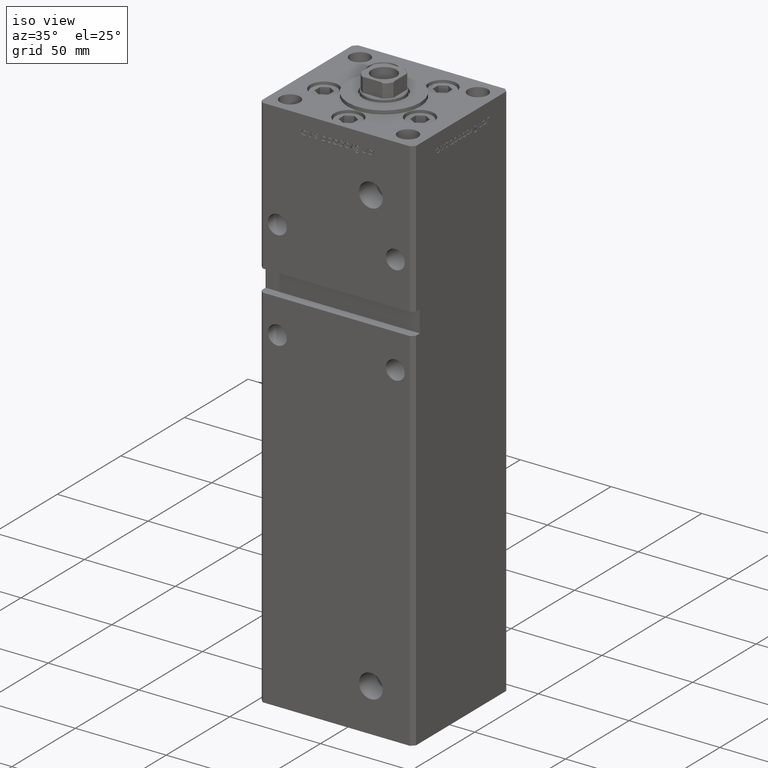
[diagram: clean part render]
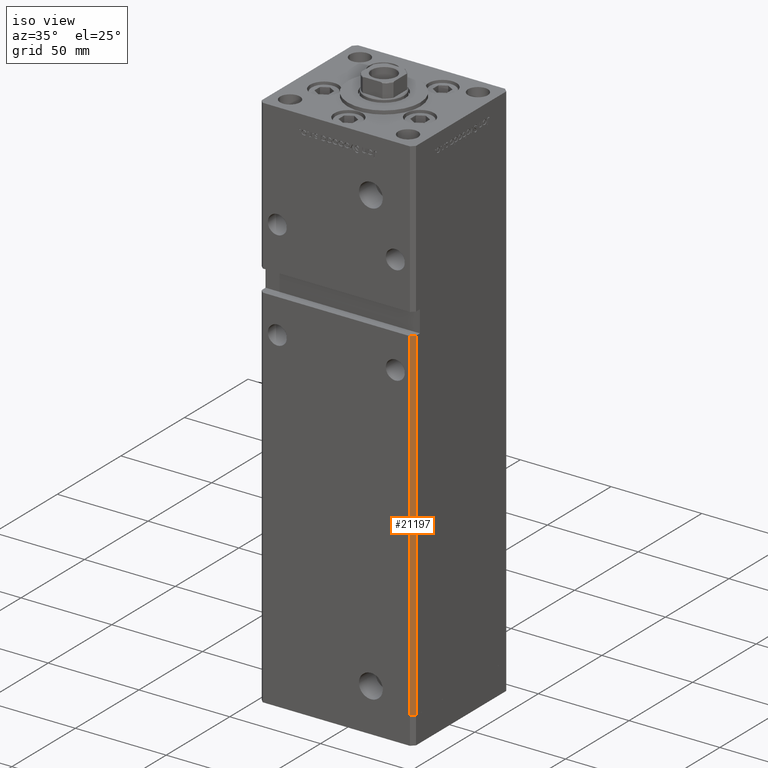
[diagram: same view with one face highlighted and labeled with its STEP entity id]
A machine part, iso view. The second image highlights one B-rep face of the part: STEP entity #21197.
In plain terms, the highlighted planar face has unit normal (0.7071, -0.7071, 0).
Its self-contained STEP definition (entity closure, byte-faithful):
#907 = DIRECTION ( 'NONE',  ( 0.7071067811865475727, -0.7071067811865475727, 0.000000000000000000 ) ) ;
#6633 = LINE ( 'NONE', #52622, #26767 ) ;
#8081 = ORIENTED_EDGE ( 'NONE', *, *, #50312, .T. ) ;
#9134 = VERTEX_POINT ( 'NONE', #39007 ) ;
#9194 = CARTESIAN_POINT ( 'NONE',  ( 42.49999999999998579, -35.50000000000000711, 0.000000000000000000 ) ) ;
#11236 = VECTOR ( 'NONE', #45776, 1000.000000000000000 ) ;
#12112 = LINE ( 'NONE', #20448, #51761 ) ;
#13001 = FACE_OUTER_BOUND ( 'NONE', #35631, .T. ) ;
#17243 = CARTESIAN_POINT ( 'NONE',  ( 42.49999999999998579, -35.50000000000000711, 268.5000000000000000 ) ) ;
#20448 = CARTESIAN_POINT ( 'NONE',  ( 40.49999999999998579, -37.50000000000000711, 268.5000000000000000 ) ) ;
#20450 = VERTEX_POINT ( 'NONE', #40330 ) ;
#21011 = LINE ( 'NONE', #17243, #11236 ) ;
#21197 = ADVANCED_FACE ( 'NONE', ( #13001 ), #29660, .T. ) ;
#25045 = ORIENTED_EDGE ( 'NONE', *, *, #26221, .F. ) ;
#25570 = DIRECTION ( 'NONE',  ( -0.7071067811865474617, -0.7071067811865474617, 0.000000000000000000 ) ) ;
#26221 = EDGE_CURVE ( 'NONE', #29706, #20450, #46047, .T. ) ;
#26767 = VECTOR ( 'NONE', #48587, 1000.000000000000114 ) ;
#27756 = EDGE_CURVE ( 'NONE', #36148, #29706, #21011, .T. ) ;
#29660 = PLANE ( 'NONE',  #35082 ) ;
#29706 = VERTEX_POINT ( 'NONE', #38703 ) ;
#30298 = CARTESIAN_POINT ( 'NONE',  ( 42.49999999999998579, -35.50000000000000711, 189.0000000000000000 ) ) ;
#30376 = ORIENTED_EDGE ( 'NONE', *, *, #50015, .F. ) ;
#35082 = AXIS2_PLACEMENT_3D ( 'NONE', #40991, #907, #45832 ) ;
#35631 = EDGE_LOOP ( 'NONE', ( #30376, #8081, #25045, #52849 ) ) ;
#36148 = VERTEX_POINT ( 'NONE', #30298 ) ;
#36862 = DIRECTION ( 'NONE',  ( -0.000000000000000000, -0.000000000000000000, -1.000000000000000000 ) ) ;
#38703 = CARTESIAN_POINT ( 'NONE',  ( 42.49999999999998579, -35.50000000000000711, 0.000000000000000000 ) ) ;
#39007 = CARTESIAN_POINT ( 'NONE',  ( 40.49999999999998579, -37.50000000000000711, 189.0000000000000000 ) ) ;
#39542 = VECTOR ( 'NONE', #25570, 1000.000000000000114 ) ;
#40330 = CARTESIAN_POINT ( 'NONE',  ( 40.49999999999998579, -37.50000000000000711, 0.000000000000000000 ) ) ;
#40991 = CARTESIAN_POINT ( 'NONE',  ( 42.49999999999998579, -35.50000000000000711, 268.5000000000000000 ) ) ;
#45776 = DIRECTION ( 'NONE',  ( -0.000000000000000000, -0.000000000000000000, -1.000000000000000000 ) ) ;
#45832 = DIRECTION ( 'NONE',  ( 0.7071067811865474617, 0.7071067811865474617, 0.000000000000000000 ) ) ;
#46047 = LINE ( 'NONE', #9194, #39542 ) ;
#48587 = DIRECTION ( 'NONE',  ( 0.7071067811865474617, 0.7071067811865474617, 0.000000000000000000 ) ) ;
#50015 = EDGE_CURVE ( 'NONE', #9134, #36148, #6633, .T. ) ;
#50312 = EDGE_CURVE ( 'NONE', #9134, #20450, #12112, .T. ) ;
#51761 = VECTOR ( 'NONE', #36862, 1000.000000000000000 ) ;
#52622 = CARTESIAN_POINT ( 'NONE',  ( 42.49999999999998579, -35.50000000000000711, 189.0000000000000000 ) ) ;
#52849 = ORIENTED_EDGE ( 'NONE', *, *, #27756, .F. ) ;